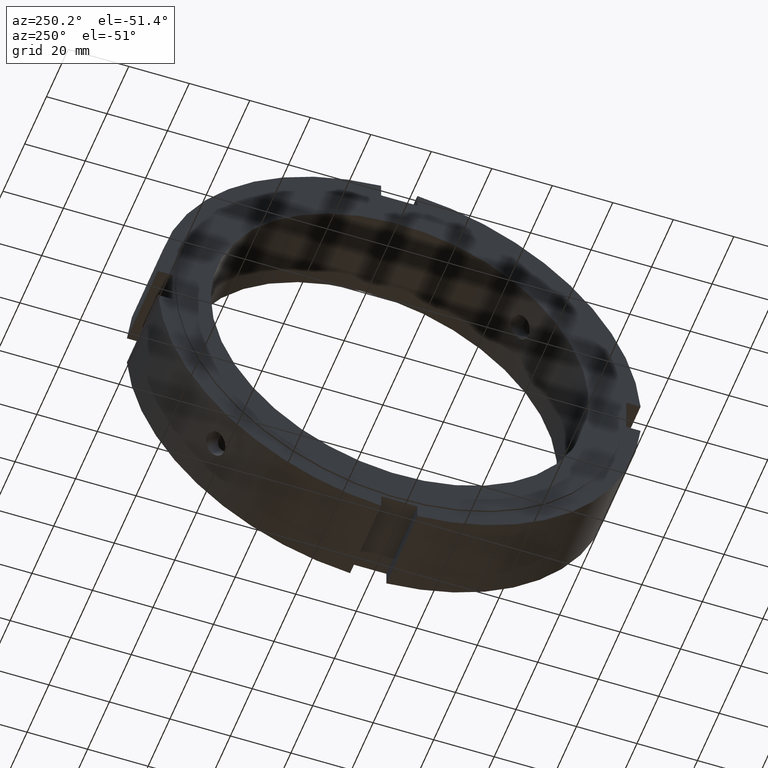
[diagram: clean part render]
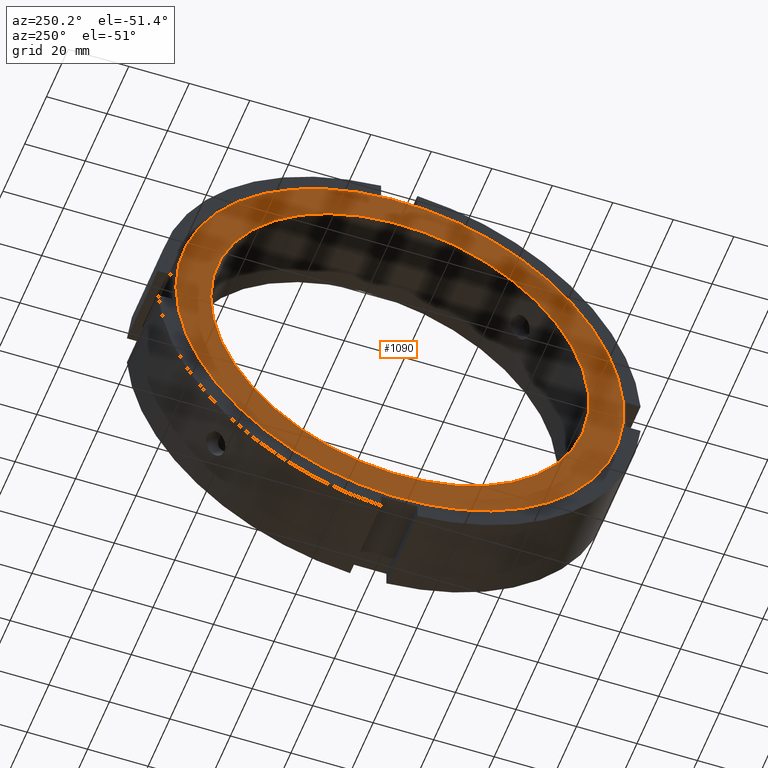
[diagram: same view with one face highlighted and labeled with its STEP entity id]
A machine part, auxiliary view. The second image highlights one B-rep face of the part: STEP entity #1090.
In plain terms, the highlighted planar face has unit normal (-1, 0, 0).
Its self-contained STEP definition (entity closure, byte-faithful):
#1063=CARTESIAN_POINT('',(-2.022296E-014,68.25,0.0));
#1064=DIRECTION('',(-1.0,0.0,0.0));
#1065=DIRECTION('',(0.0,0.0,1.0));
#1066=AXIS2_PLACEMENT_3D('',#1063,#1064,#1065);
#1067=PLANE('',#1066);
#1068=CARTESIAN_POINT('',(-2.220446E-014,74.0,0.0));
#1069=VERTEX_POINT('',#1068);
#1070=CARTESIAN_POINT('',(-2.220446E-014,0.0,0.0));
#1071=DIRECTION('',(1.0,0.0,0.0));
#1072=DIRECTION('',(0.0,1.0,0.0));
#1073=AXIS2_PLACEMENT_3D('',#1070,#1071,#1072);
#1074=CIRCLE('',#1073,74.0);
#1075=EDGE_CURVE('',#1069,#1069,#1074,.T.);
#1076=ORIENTED_EDGE('',*,*,#1075,.F.);
#1077=EDGE_LOOP('',(#1076));
#1078=FACE_OUTER_BOUND('',#1077,.T.);
#1079=CARTESIAN_POINT('',(-1.824145E-014,62.5,0.0));
#1080=VERTEX_POINT('',#1079);
#1081=CARTESIAN_POINT('',(-1.824062E-014,0.0,0.0));
#1082=DIRECTION('',(1.0,0.0,0.0));
#1083=DIRECTION('',(0.0,1.0,0.0));
#1084=AXIS2_PLACEMENT_3D('',#1081,#1082,#1083);
#1085=CIRCLE('',#1084,62.5);
#1086=EDGE_CURVE('',#1080,#1080,#1085,.T.);
#1087=ORIENTED_EDGE('',*,*,#1086,.T.);
#1088=EDGE_LOOP('',(#1087));
#1089=FACE_BOUND('',#1088,.T.);
#1090=ADVANCED_FACE('',(#1078,#1089),#1067,.T.);